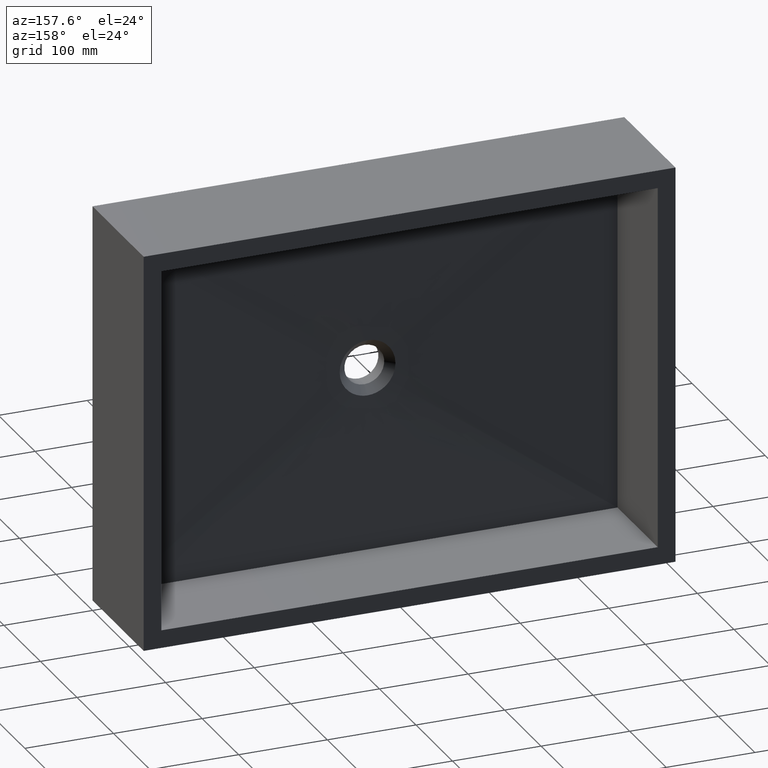
[diagram: clean part render]
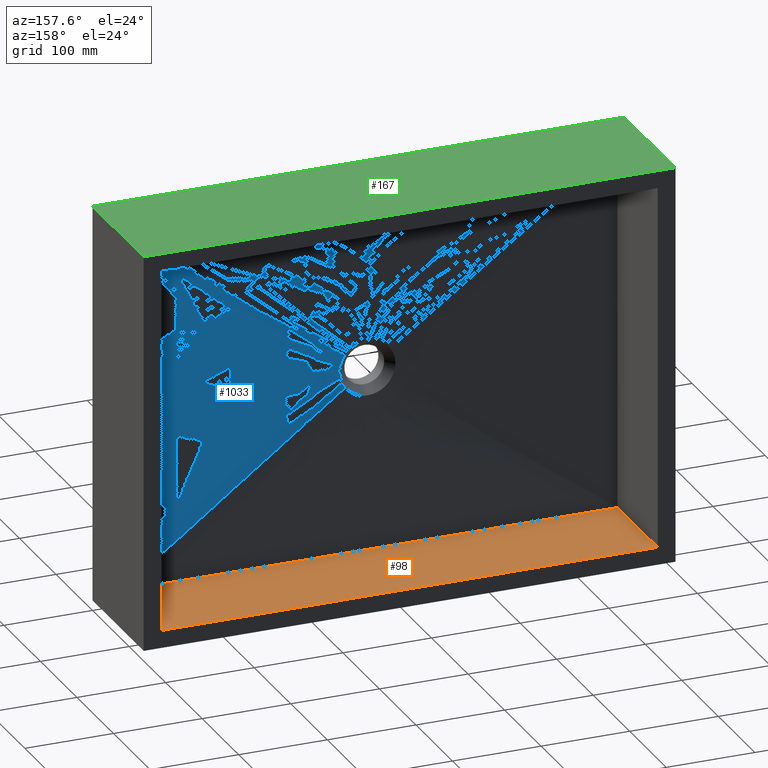
[diagram: same view with three faces highlighted in distinct colors, each labeled with its STEP entity id]
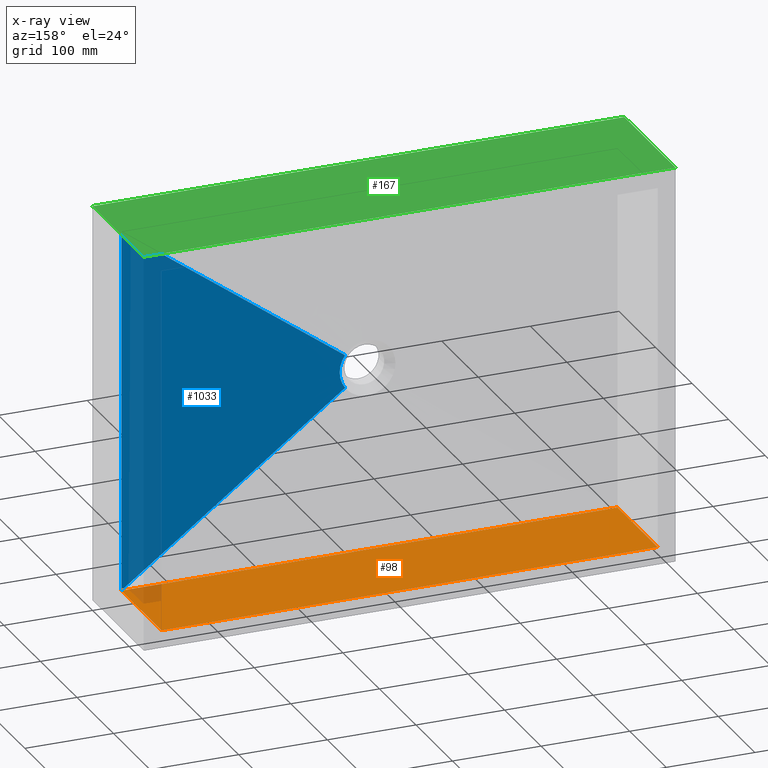
[diagram: x-ray of the same camera — body ghosted, the three highlighted faces saturated]
A machine part, auxiliary view with three faces highlighted in distinct colors.
The next image is the same camera in x-ray (body ghosted, the three faces saturated) — at least one of them is partly hidden behind the body in this view.
Their STEP definitions:

[orange] entity #98 — the highlighted planar face has unit normal (-0, 0, -1).
#14 = VECTOR ( 'NONE', #1037, 1000.000000000000000 ) ;
#82 = VECTOR ( 'NONE', #752, 1000.000000000000000 ) ;
#98 = ADVANCED_FACE ( 'NONE', ( #178 ), #534, .F. ) ;
#134 = CARTESIAN_POINT ( 'NONE',  ( 580.0000000000000000, 140.0000000000000000, -430.0000000000000000 ) ) ;
#153 = AXIS2_PLACEMENT_3D ( 'NONE', #1010, #372, #204 ) ;
#178 = FACE_OUTER_BOUND ( 'NONE', #729, .T. ) ;
#204 = DIRECTION ( 'NONE',  ( -1.000000000000000000, 0.0000000000000000000, 0.0000000000000000000 ) ) ;
#211 = CARTESIAN_POINT ( 'NONE',  ( 20.00000000000001800, 30.00000000000002800, -430.0000000000000000 ) ) ;
#237 = CARTESIAN_POINT ( 'NONE',  ( 580.0000000000000000, -694.0461079784252000, -430.0000000000000000 ) ) ;
#242 = CARTESIAN_POINT ( 'NONE',  ( 299.9999999999975000, 30.00000000000000000, -429.9999999999999400 ) ) ;
#246 = ORIENTED_EDGE ( 'NONE', *, *, #783, .T. ) ;
#268 = CARTESIAN_POINT ( 'NONE',  ( 20.00000000000000000, 140.0000000000000000, -430.0000000000000000 ) ) ;
#310 = LINE ( 'NONE', #237, #452 ) ;
#362 = ORIENTED_EDGE ( 'NONE', *, *, #788, .T. ) ;
#372 = DIRECTION ( 'NONE',  ( -0.0000000000000000000, 0.0000000000000000000, -1.000000000000000000 ) ) ;
#452 = VECTOR ( 'NONE', #838, 1000.000000000000000 ) ;
#478 = CARTESIAN_POINT ( 'NONE',  ( 580.0000000000000000, 140.0000000000000000, -430.0000000000000000 ) ) ;
#484 = VERTEX_POINT ( 'NONE', #211 ) ;
#508 = VECTOR ( 'NONE', #1102, 1000.000000000000000 ) ;
#530 = EDGE_CURVE ( 'NONE', #484, #657, #884, .T. ) ;
#534 = PLANE ( 'NONE',  #153 ) ;
#600 = CARTESIAN_POINT ( 'NONE',  ( 20.00000000000000000, -694.0461079784252000, -430.0000000000000000 ) ) ;
#614 = ORIENTED_EDGE ( 'NONE', *, *, #530, .F. ) ;
#644 = VERTEX_POINT ( 'NONE', #794 ) ;
#657 = VERTEX_POINT ( 'NONE', #268 ) ;
#675 = ORIENTED_EDGE ( 'NONE', *, *, #760, .T. ) ;
#729 = EDGE_LOOP ( 'NONE', ( #246, #362, #675, #614 ) ) ;
#749 = LINE ( 'NONE', #478, #508 ) ;
#752 = DIRECTION ( 'NONE',  ( 1.000000000000000000, -0.0000000000000000000, -2.379049338482446200E-015 ) ) ;
#760 = EDGE_CURVE ( 'NONE', #1112, #657, #749, .T. ) ;
#783 = EDGE_CURVE ( 'NONE', #484, #644, #982, .T. ) ;
#788 = EDGE_CURVE ( 'NONE', #644, #1112, #310, .T. ) ;
#794 = CARTESIAN_POINT ( 'NONE',  ( 580.0000000000000000, 30.00000000000002800, -430.0000000000000000 ) ) ;
#838 = DIRECTION ( 'NONE',  ( -0.0000000000000000000, 1.000000000000000000, -0.0000000000000000000 ) ) ;
#884 = LINE ( 'NONE', #600, #14 ) ;
#982 = LINE ( 'NONE', #242, #82 ) ;
#1010 = CARTESIAN_POINT ( 'NONE',  ( 580.0000000000000000, -694.0461079784252000, -430.0000000000000000 ) ) ;
#1037 = DIRECTION ( 'NONE',  ( -0.0000000000000000000, 1.000000000000000000, -0.0000000000000000000 ) ) ;
#1102 = DIRECTION ( 'NONE',  ( -1.000000000000000000, 0.0000000000000000000, 0.0000000000000000000 ) ) ;
#1112 = VERTEX_POINT ( 'NONE', #134 ) ;

[blue] entity #1033 — the highlighted face is a freeform B-spline surface patch.
#34 = ORIENTED_EDGE ( 'NONE', *, *, #630, .F. ) ;
#39 = B_SPLINE_CURVE_WITH_KNOTS ( 'NONE', 3,
 ( #787, #516, #967, #431, #1053, #521, #617, #95, #707, #183 ),
 .UNSPECIFIED., .F., .F.,
 ( 4, 2, 2, 2, 4 ),
 ( 0.0000000000000000000, 0.2500000000000000000, 0.5000000000000000000, 0.7500000000000000000, 1.000000000000000000 ),
 .UNSPECIFIED. ) ;
#60 = CARTESIAN_POINT ( 'NONE',  ( 330.3926316505376800, 25.00000000000000700, -216.5541278900830100 ) ) ;
#71 = CARTESIAN_POINT ( 'NONE',  ( 579.9999999999998900, 30.00000000000000000, -225.0000000000001400 ) ) ;
#80 = CARTESIAN_POINT ( 'NONE',  ( 331.4999999999999400, 25.00000000000000400, -223.2835559344226800 ) ) ;
#95 = CARTESIAN_POINT ( 'NONE',  ( 331.3587870193233600, 25.00000000000000000, -228.4327369430491500 ) ) ;
#106 = CARTESIAN_POINT ( 'NONE',  ( 579.9999999999998900, 30.00000000000000000, -310.4166666666668000 ) ) ;
#141 = CARTESIAN_POINT ( 'NONE',  ( 330.8050334491403000, 25.00000000000000400, -218.2024180445686700 ) ) ;
#143 = CARTESIAN_POINT ( 'NONE',  ( 579.9999999999998900, 30.00000000000000000, -361.6666666666666900 ) ) ;
#144 = CARTESIAN_POINT ( 'NONE',  ( 327.1779008891601300, 25.00000000000000400, -208.9927151180129700 ) ) ;
#168 = CARTESIAN_POINT ( 'NONE',  ( 579.9999999999998900, 30.00000000000000000, -242.0833333333334800 ) ) ;
#183 = CARTESIAN_POINT ( 'NONE',  ( 331.4999999999999400, 25.00000000000000000, -225.0000000000000300 ) ) ;
#187 = LINE ( 'NONE', #341, #413 ) ;
#205 = VERTEX_POINT ( 'NONE', #772 ) ;
#223 = CARTESIAN_POINT ( 'NONE',  ( 331.3587870193233000, 25.00000000000000700, -221.5672630569509900 ) ) ;
#254 = EDGE_CURVE ( 'NONE', #644, #314, #453, .T. ) ;
#255 = CARTESIAN_POINT ( 'NONE',  ( 579.9999999999998900, 30.00000000000000400, -37.08333333333335700 ) ) ;
#257 = EDGE_CURVE ( 'NONE', #1052, #205, #945, .T. ) ;
#266 = CARTESIAN_POINT ( 'NONE',  ( 452.7080894174168300, 27.50000000000000400, -336.8041368948944400 ) ) ;
#308 = CARTESIAN_POINT ( 'NONE',  ( 579.9999999999998900, 30.00000000000000000, -88.33333333333340000 ) ) ;
#314 = VERTEX_POINT ( 'NONE', #962 ) ;
#320 = CARTESIAN_POINT ( 'NONE',  ( 331.4999999999999400, 25.00000000000000000, -225.0000000000000300 ) ) ;
#338 = CARTESIAN_POINT ( 'NONE',  ( 580.0000000000000000, 30.00000000000000400, -20.00000000000000000 ) ) ;
#341 = CARTESIAN_POINT ( 'NONE',  ( 452.7080894174168300, 27.50000000000000400, -113.1958631051055200 ) ) ;
#347 = CARTESIAN_POINT ( 'NONE',  ( 325.4161788348337200, 25.00000000000000000, -243.6082737897890200 ) ) ;
#391 = VECTOR ( 'NONE', #436, 1000.000000000000100 ) ;
#393 = CARTESIAN_POINT ( 'NONE',  ( 329.3279404725045100, 25.00000000000000400, -213.3846342294542900 ) ) ;
#413 = VECTOR ( 'NONE', #502, 1000.000000000000100 ) ;
#431 = CARTESIAN_POINT ( 'NONE',  ( 328.6758814800770100, 25.00000000000000000, -238.1364107493136000 ) ) ;
#436 = DIRECTION ( 'NONE',  ( 0.8067615303477275700, 0.01584471327862436000, -0.5906646918617286500 ) ) ;
#444 = CARTESIAN_POINT ( 'NONE',  ( 328.6758814800769500, 25.00000000000000400, -211.8635892506864900 ) ) ;
#446 = CARTESIAN_POINT ( 'NONE',  ( 326.3322313571505300, 25.00000000000000400, -242.3570801007709600 ) ) ;
#453 = LINE ( 'NONE', #71, #900 ) ;
#456 = ORIENTED_EDGE ( 'NONE', *, *, #590, .T. ) ;
#465 = CARTESIAN_POINT ( 'NONE',  ( 325.4161788348337200, 25.00000000000000000, -243.6082737897890200 ) ) ;
#500 = ORIENTED_EDGE ( 'NONE', *, *, #612, .T. ) ;
#502 = DIRECTION ( 'NONE',  ( 0.8067615303477272400, 0.01584471327862434900, 0.5906646918617291000 ) ) ;
#509 = CARTESIAN_POINT ( 'NONE',  ( 579.9999999999998900, 30.00000000000000400, -54.16666666666670700 ) ) ;
#516 = CARTESIAN_POINT ( 'NONE',  ( 326.3322313571505300, 25.00000000000000400, -242.3570801007709600 ) ) ;
#520 = CARTESIAN_POINT ( 'NONE',  ( 579.9999999999998900, 30.00000000000000000, -344.5833333333333700 ) ) ;
#521 = CARTESIAN_POINT ( 'NONE',  ( 330.3926316505377400, 25.00000000000000000, -233.4458721099170200 ) ) ;
#533 = CARTESIAN_POINT ( 'NONE',  ( 579.9999999999998900, 30.00000000000000000, -412.9166666666665700 ) ) ;
#572 = CARTESIAN_POINT ( 'NONE',  ( 331.4999999999998900, 25.00000000000000700, -226.7164440655773800 ) ) ;
#590 = EDGE_CURVE ( 'NONE', #205, #314, #187, .T. ) ;
#597 = CARTESIAN_POINT ( 'NONE',  ( 579.9999999999998900, 30.00000000000000000, -207.9166666666668000 ) ) ;
#601 = CARTESIAN_POINT ( 'NONE',  ( 327.1779008891601300, 25.00000000000000400, -208.9927151180129700 ) ) ;
#603 = CARTESIAN_POINT ( 'NONE',  ( 331.4999999999999400, 25.00000000000000000, -225.0000000000000300 ) ) ;
#612 = EDGE_CURVE ( 'NONE', #946, #1052, #39, .T. ) ;
#616 = CARTESIAN_POINT ( 'NONE',  ( 331.3587870193233000, 25.00000000000000700, -221.5672630569509900 ) ) ;
#617 = CARTESIAN_POINT ( 'NONE',  ( 330.8050334491402400, 25.00000000000000700, -231.7975819554314400 ) ) ;
#621 = CARTESIAN_POINT ( 'NONE',  ( 579.9999999999998900, 30.00000000000000000, -395.8333333333332600 ) ) ;
#624 = CARTESIAN_POINT ( 'NONE',  ( 328.6758814800770100, 25.00000000000000000, -238.1364107493136000 ) ) ;
#630 = EDGE_CURVE ( 'NONE', #946, #644, #1093, .T. ) ;
#634 = DIRECTION ( 'NONE',  ( 6.498866485610664800E-015, -0.0000000000000000000, 1.000000000000000000 ) ) ;
#644 = VERTEX_POINT ( 'NONE', #794 ) ;
#661 = CARTESIAN_POINT ( 'NONE',  ( 579.9999999999998900, 30.00000000000000000, -139.5833333333334600 ) ) ;
#664 = CARTESIAN_POINT ( 'NONE',  ( 330.8050334491403000, 25.00000000000000400, -218.2024180445686700 ) ) ;
#687 = CARTESIAN_POINT ( 'NONE',  ( 579.9999999999998900, 30.00000000000000000, -190.8333333333334600 ) ) ;
#690 = CARTESIAN_POINT ( 'NONE',  ( 330.8050334491402400, 25.00000000000000700, -231.7975819554314400 ) ) ;
#694 = FACE_OUTER_BOUND ( 'NONE', #851, .T. ) ;
#707 = CARTESIAN_POINT ( 'NONE',  ( 331.4999999999998900, 25.00000000000000700, -226.7164440655773800 ) ) ;
#722 = B_SPLINE_SURFACE_WITH_KNOTS ( 'NONE', 3, 1, ( 
 ( #743, #338 ),
 ( #775, #255 ),
 ( #601, #509 ),
 ( #1041, #308 ),
 ( #393, #1098 ),
 ( #60, #661 ),
 ( #141, #748 ),
 ( #223, #687 ),
 ( #80, #597 ),
 ( #572, #168 ),
 ( #868, #954 ),
 ( #690, #805 ),
 ( #1099, #106 ),
 ( #931, #520 ),
 ( #624, #143 ),
 ( #977, #621 ),
 ( #446, #533 ),
 ( #347, #893 ) ),
 .UNSPECIFIED., .F., .F., .F.,
 ( 4, 2, 2, 2, 2, 2, 2, 2, 4 ),
 ( 2, 2 ),
 ( 0.0000000000000000000, 0.1250000000000000000, 0.2500000000000000000, 0.3750000000000000000, 0.5000000000000000000, 0.6250000000000000000, 0.7500000000000000000, 0.8750000000000000000, 1.000000000000000000 ),
 ( 0.0000000000000000000, 1.000000000000000000 ),
 .UNSPECIFIED. ) ;
#743 = CARTESIAN_POINT ( 'NONE',  ( 325.4161788348337200, 25.00000000000000000, -206.3917262102110300 ) ) ;
#748 = CARTESIAN_POINT ( 'NONE',  ( 579.9999999999998900, 30.00000000000000000, -156.6666666666668000 ) ) ;
#772 = CARTESIAN_POINT ( 'NONE',  ( 325.4161788348337200, 25.00000000000000000, -206.3917262102110300 ) ) ;
#775 = CARTESIAN_POINT ( 'NONE',  ( 326.3322313571505300, 25.00000000000000400, -207.6429198992290700 ) ) ;
#778 = ORIENTED_EDGE ( 'NONE', *, *, #254, .F. ) ;
#787 = CARTESIAN_POINT ( 'NONE',  ( 325.4161788348337200, 25.00000000000000000, -243.6082737897890200 ) ) ;
#794 = CARTESIAN_POINT ( 'NONE',  ( 580.0000000000000000, 30.00000000000002800, -430.0000000000000000 ) ) ;
#805 = CARTESIAN_POINT ( 'NONE',  ( 579.9999999999998900, 30.00000000000000000, -293.3333333333334300 ) ) ;
#811 = CARTESIAN_POINT ( 'NONE',  ( 330.3926316505376800, 25.00000000000000700, -216.5541278900830100 ) ) ;
#851 = EDGE_LOOP ( 'NONE', ( #500, #875, #456, #778, #34 ) ) ;
#868 = CARTESIAN_POINT ( 'NONE',  ( 331.3587870193233600, 25.00000000000000000, -228.4327369430491200 ) ) ;
#875 = ORIENTED_EDGE ( 'NONE', *, *, #257, .T. ) ;
#893 = CARTESIAN_POINT ( 'NONE',  ( 580.0000000000000000, 30.00000000000000400, -429.9999999999998900 ) ) ;
#900 = VECTOR ( 'NONE', #634, 1000.000000000000000 ) ;
#930 = CARTESIAN_POINT ( 'NONE',  ( 325.4161788348337200, 25.00000000000000000, -206.3917262102110300 ) ) ;
#931 = CARTESIAN_POINT ( 'NONE',  ( 329.3279404725045700, 25.00000000000000400, -236.6153657705457900 ) ) ;
#945 = B_SPLINE_CURVE_WITH_KNOTS ( 'NONE', 3,
 ( #603, #953, #616, #664, #811, #1024, #444, #144, #964, #930 ),
 .UNSPECIFIED., .F., .F.,
 ( 4, 2, 2, 2, 4 ),
 ( 0.0000000000000000000, 0.2500000000000000000, 0.5000000000000000000, 0.7500000000000000000, 1.000000000000000000 ),
 .UNSPECIFIED. ) ;
#946 = VERTEX_POINT ( 'NONE', #465 ) ;
#953 = CARTESIAN_POINT ( 'NONE',  ( 331.4999999999999400, 25.00000000000000400, -223.2835559344226800 ) ) ;
#954 = CARTESIAN_POINT ( 'NONE',  ( 579.9999999999998900, 30.00000000000000000, -259.1666666666668000 ) ) ;
#962 = CARTESIAN_POINT ( 'NONE',  ( 580.0000000000000000, 30.00000000000002800, -20.00000000000000000 ) ) ;
#964 = CARTESIAN_POINT ( 'NONE',  ( 326.3322313571505300, 25.00000000000000400, -207.6429198992290700 ) ) ;
#967 = CARTESIAN_POINT ( 'NONE',  ( 327.1779008891601300, 25.00000000000000400, -241.0072848819872300 ) ) ;
#977 = CARTESIAN_POINT ( 'NONE',  ( 327.1779008891601300, 25.00000000000000400, -241.0072848819872300 ) ) ;
#1024 = CARTESIAN_POINT ( 'NONE',  ( 329.3279404725045100, 25.00000000000000400, -213.3846342294542900 ) ) ;
#1033 = ADVANCED_FACE ( 'NONE', ( #694 ), #722, .F. ) ;
#1041 = CARTESIAN_POINT ( 'NONE',  ( 328.6758814800769500, 25.00000000000000400, -211.8635892506864900 ) ) ;
#1052 = VERTEX_POINT ( 'NONE', #320 ) ;
#1053 = CARTESIAN_POINT ( 'NONE',  ( 329.3279404725045700, 25.00000000000000400, -236.6153657705457900 ) ) ;
#1093 = LINE ( 'NONE', #266, #391 ) ;
#1098 = CARTESIAN_POINT ( 'NONE',  ( 579.9999999999998900, 30.00000000000000000, -105.4166666666667600 ) ) ;
#1099 = CARTESIAN_POINT ( 'NONE',  ( 330.3926316505377400, 25.00000000000000000, -233.4458721099170200 ) ) ;

[green] entity #167 — the highlighted planar face has unit normal (0, 0, -1).
#19 = ORIENTED_EDGE ( 'NONE', *, *, #493, .F. ) ;
#31 = LINE ( 'NONE', #506, #1021 ) ;
#56 = EDGE_LOOP ( 'NONE', ( #571, #19, #903, #672 ) ) ;
#73 = LINE ( 'NONE', #331, #737 ) ;
#139 = LINE ( 'NONE', #703, #1061 ) ;
#167 = ADVANCED_FACE ( 'NONE', ( #751 ), #531, .F. ) ;
#179 = DIRECTION ( 'NONE',  ( 1.000000000000000000, 0.0000000000000000000, 0.0000000000000000000 ) ) ;
#184 = CARTESIAN_POINT ( 'NONE',  ( 600.0000000000000000, 0.0000000000000000000, 0.0000000000000000000 ) ) ;
#202 = DIRECTION ( 'NONE',  ( 0.0000000000000000000, 0.0000000000000000000, -1.000000000000000000 ) ) ;
#218 = VERTEX_POINT ( 'NONE', #724 ) ;
#240 = EDGE_CURVE ( 'NONE', #628, #218, #31, .T. ) ;
#270 = AXIS2_PLACEMENT_3D ( 'NONE', #845, #202, #842 ) ;
#271 = CARTESIAN_POINT ( 'NONE',  ( 0.0000000000000000000, 140.0000000000000000, 0.0000000000000000000 ) ) ;
#331 = CARTESIAN_POINT ( 'NONE',  ( 600.0000000000000000, 140.0000000000000000, 0.0000000000000000000 ) ) ;
#394 = VERTEX_POINT ( 'NONE', #184 ) ;
#493 = EDGE_CURVE ( 'NONE', #497, #394, #73, .T. ) ;
#495 = LINE ( 'NONE', #955, #678 ) ;
#497 = VERTEX_POINT ( 'NONE', #950 ) ;
#506 = CARTESIAN_POINT ( 'NONE',  ( 0.0000000000000000000, 140.0000000000000000, 0.0000000000000000000 ) ) ;
#531 = PLANE ( 'NONE',  #270 ) ;
#562 = EDGE_CURVE ( 'NONE', #628, #497, #495, .T. ) ;
#571 = ORIENTED_EDGE ( 'NONE', *, *, #606, .T. ) ;
#604 = DIRECTION ( 'NONE',  ( 1.000000000000000000, 0.0000000000000000000, 0.0000000000000000000 ) ) ;
#606 = EDGE_CURVE ( 'NONE', #218, #394, #139, .T. ) ;
#628 = VERTEX_POINT ( 'NONE', #271 ) ;
#672 = ORIENTED_EDGE ( 'NONE', *, *, #240, .T. ) ;
#678 = VECTOR ( 'NONE', #604, 1000.000000000000000 ) ;
#703 = CARTESIAN_POINT ( 'NONE',  ( 0.0000000000000000000, 0.0000000000000000000, 0.0000000000000000000 ) ) ;
#724 = CARTESIAN_POINT ( 'NONE',  ( 0.0000000000000000000, 0.0000000000000000000, 0.0000000000000000000 ) ) ;
#737 = VECTOR ( 'NONE', #1032, 1000.000000000000000 ) ;
#751 = FACE_OUTER_BOUND ( 'NONE', #56, .T. ) ;
#842 = DIRECTION ( 'NONE',  ( -1.000000000000000000, 0.0000000000000000000, -0.0000000000000000000 ) ) ;
#845 = CARTESIAN_POINT ( 'NONE',  ( 0.0000000000000000000, 140.0000000000000000, 0.0000000000000000000 ) ) ;
#903 = ORIENTED_EDGE ( 'NONE', *, *, #562, .F. ) ;
#924 = DIRECTION ( 'NONE',  ( -0.0000000000000000000, -1.000000000000000000, -0.0000000000000000000 ) ) ;
#950 = CARTESIAN_POINT ( 'NONE',  ( 600.0000000000000000, 140.0000000000000000, 0.0000000000000000000 ) ) ;
#955 = CARTESIAN_POINT ( 'NONE',  ( 0.0000000000000000000, 140.0000000000000000, 0.0000000000000000000 ) ) ;
#1021 = VECTOR ( 'NONE', #924, 1000.000000000000000 ) ;
#1032 = DIRECTION ( 'NONE',  ( -0.0000000000000000000, -1.000000000000000000, -0.0000000000000000000 ) ) ;
#1061 = VECTOR ( 'NONE', #179, 1000.000000000000000 ) ;